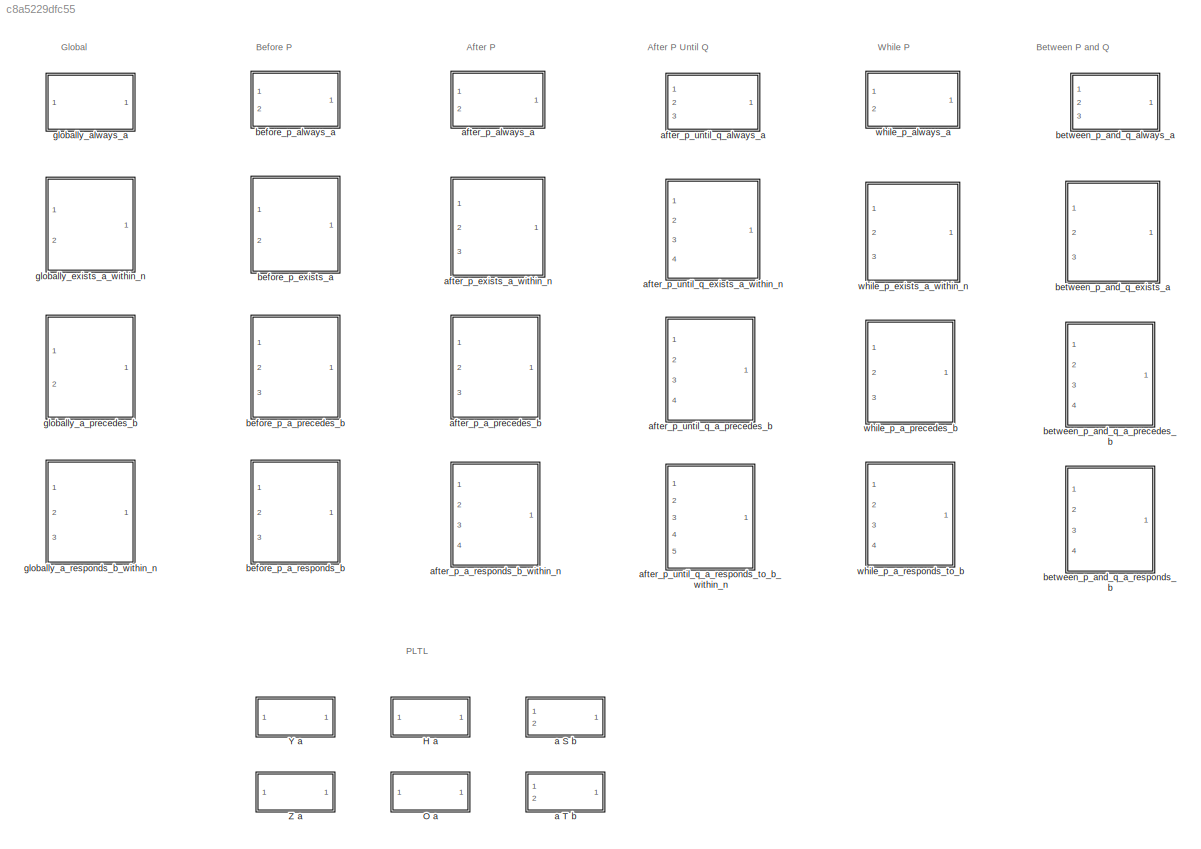
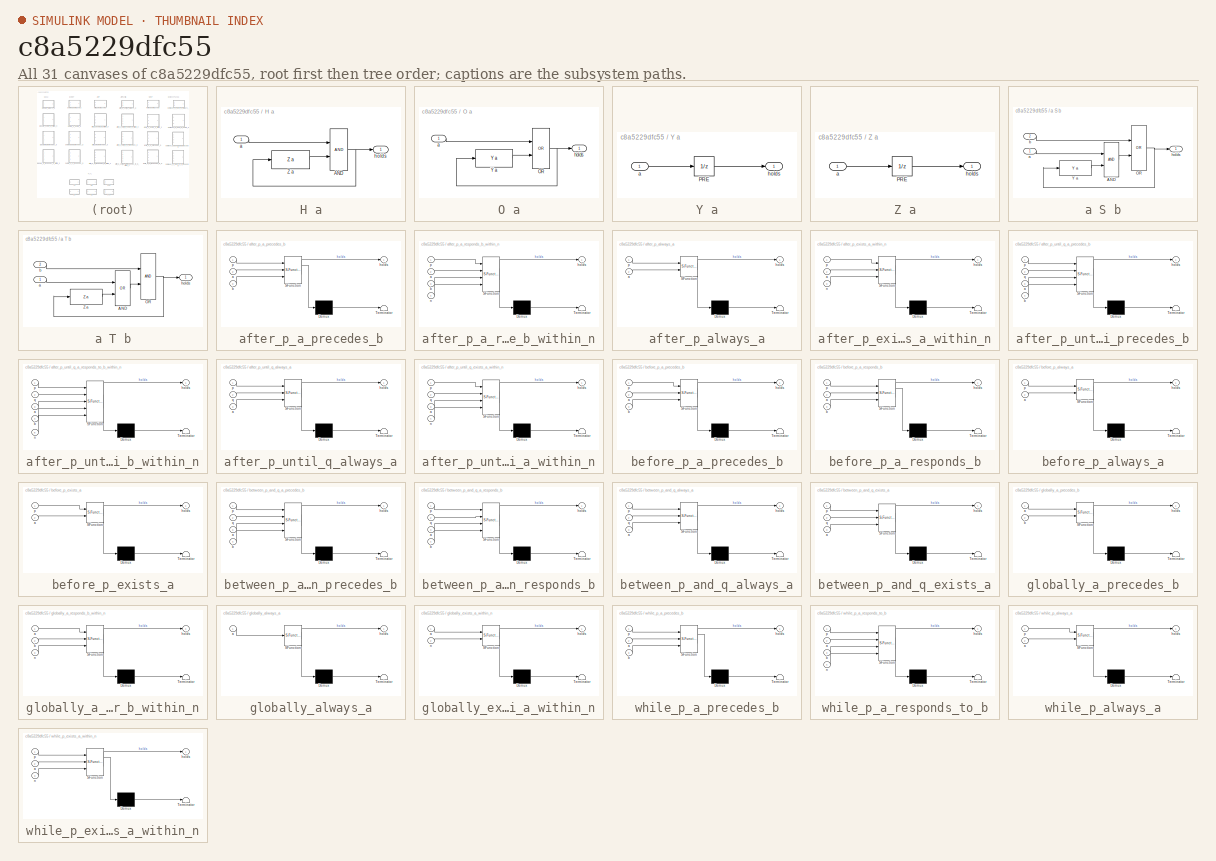
[diagram: thumbnail index - all 31 canvases of the model, root first then tree order]
MODEL slx_c8a5229dfc55
KIND library
BLOCK [SubSystem] H a
  Ports = [1, 1]
  RequestExecContextInheritance = off
BLOCK [Logic] H a/AND
  AllPortsSameDT = off
  OutDataTypeStr = boolean
  Ports = [2, 1]
BLOCK [Reference] H a/Z a  REF=patterns_library/Z a  (lib defined in slx_1b5033acf6a4)
  Ports = [1, 1]
  SourceBlock = patterns_library/Z a
  SourceType = SubSystem
BLOCK [Inport] H a/a
  IconDisplay = Port number
BLOCK [Outport] H a/holds
  IconDisplay = Port number
BLOCK [SubSystem] O a
  Ports = [1, 1]
  RequestExecContextInheritance = off
BLOCK [Logic] O a/OR
  AllPortsSameDT = off
  Operator = OR
  OutDataTypeStr = boolean
  Ports = [2, 1]
BLOCK [Reference] O a/Y a  REF=patterns_library/Y a  (lib defined in slx_1b5033acf6a4)
  Ports = [1, 1]
  SourceBlock = patterns_library/Y a
  SourceType = SubSystem
BLOCK [Inport] O a/a
  IconDisplay = Port number
BLOCK [Outport] O a/holds
  IconDisplay = Port number
BLOCK [SubSystem] Y a
  Ports = [1, 1]
  RequestExecContextInheritance = off
BLOCK [UnitDelay] Y a/PRE
  AttributesFormatString = default=%<InitialCondition>
  InitialCondition = false
  InputProcessing = Elements as channels (sample based)
  SampleTime = -1
BLOCK [Inport] Y a/a
  IconDisplay = Port number
BLOCK [Outport] Y a/holds
  IconDisplay = Port number
BLOCK [SubSystem] Z a
  Ports = [1, 1]
  RequestExecContextInheritance = off
BLOCK [UnitDelay] Z a/PRE
  AttributesFormatString = default=%<InitialCondition>
  InitialCondition = true
  InputProcessing = Elements as channels (sample based)
  SampleTime = -1
BLOCK [Inport] Z a/a
  IconDisplay = Port number
BLOCK [Outport] Z a/holds
  IconDisplay = Port number
BLOCK [SubSystem] a S b
  Ports = [2, 1]
  RequestExecContextInheritance = off
BLOCK [Logic] a S b/AND
  AllPortsSameDT = off
  OutDataTypeStr = boolean
  Ports = [2, 1]
BLOCK [Logic] a S b/OR
  AllPortsSameDT = off
  Operator = OR
  OutDataTypeStr = boolean
  Ports = [2, 1]
BLOCK [Reference] a S b/Y a  REF=patterns_library/Y a  (lib defined in slx_1b5033acf6a4)
  Ports = [1, 1]
  SourceBlock = patterns_library/Y a
  SourceType = SubSystem
BLOCK [Inport] a S b/a
  IconDisplay = Port number
BLOCK [Inport] a S b/b
  IconDisplay = Port number
  Port = 2
BLOCK [Outport] a S b/holds
  IconDisplay = Port number
BLOCK [SubSystem] a T b
  Ports = [2, 1]
  RequestExecContextInheritance = off
BLOCK [Logic] a T b/AND
  AllPortsSameDT = off
  Operator = OR
  OutDataTypeStr = boolean
  Ports = [2, 1]
BLOCK [Logic] a T b/OR
  AllPortsSameDT = off
  OutDataTypeStr = boolean
  Ports = [2, 1]
BLOCK [Reference] a T b/Z a  REF=patterns_library/Z a  (lib defined in slx_1b5033acf6a4)
  Ports = [1, 1]
  SourceBlock = patterns_library/Z a
  SourceType = SubSystem
BLOCK [Inport] a T b/a
  IconDisplay = Port number
BLOCK [Inport] a T b/b
  IconDisplay = Port number
  Port = 2
BLOCK [Outport] a T b/holds
  IconDisplay = Port number
BLOCK [SubSystem] after_p_a_precedes_b
  ErrorFcn = Stateflow.Translate.translate
  PermitHierarchicalResolution = ParametersOnly
  Ports = [3, 1]
  RequestExecContextInheritance = off
  SFBlockType = Chart
  TreatAsAtomicUnit = on
BLOCK [Demux] after_p_a_precedes_b/ Demux 
  Outputs = 1
  Ports = [1, 1]
BLOCK [S-Function] after_p_a_precedes_b/ SFunction 
  EnableBusSupport = off
  FunctionName = sf_sfun
  PortCounts = [3 2]
  Ports = [3, 2]
  Tag = Stateflow S-Function patterns_library_2013b 6
BLOCK [Terminator] after_p_a_precedes_b/ Terminator 
BLOCK [Inport] after_p_a_precedes_b/a
  IconDisplay = Port number
  Port = 2
BLOCK [Inport] after_p_a_precedes_b/b
  IconDisplay = Port number
  Port = 3
BLOCK [Outport] after_p_a_precedes_b/holds
  IconDisplay = Port number
BLOCK [Inport] after_p_a_precedes_b/p
  IconDisplay = Port number
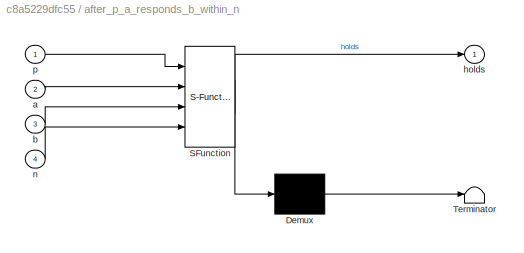
BLOCK [SubSystem] after_p_a_responds_b_within_n
  ErrorFcn = Stateflow.Translate.translate
  PermitHierarchicalResolution = ParametersOnly
  Ports = [4, 1]
  RequestExecContextInheritance = off
  SFBlockType = Chart
  TreatAsAtomicUnit = on
BLOCK [Demux] after_p_a_responds_b_within_n/ Demux 
  Outputs = 1
  Ports = [1, 1]
BLOCK [S-Function] after_p_a_responds_b_within_n/ SFunction 
  EnableBusSupport = off
  FunctionName = sf_sfun
  PortCounts = [4 2]
  Ports = [4, 2]
  Tag = Stateflow S-Function patterns_library_2013b 8
BLOCK [Terminator] after_p_a_responds_b_within_n/ Terminator 
BLOCK [Inport] after_p_a_responds_b_within_n/a
  IconDisplay = Port number
  Port = 2
BLOCK [Inport] after_p_a_responds_b_within_n/b
  IconDisplay = Port number
  Port = 3
BLOCK [Outport] after_p_a_responds_b_within_n/holds
  IconDisplay = Port number
BLOCK [Inport] after_p_a_responds_b_within_n/n
  IconDisplay = Port number
  Port = 4
BLOCK [Inport] after_p_a_responds_b_within_n/p
  IconDisplay = Port number
BLOCK [SubSystem] after_p_always_a
  ErrorFcn = Stateflow.Translate.translate
  PermitHierarchicalResolution = ParametersOnly
  Ports = [2, 1]
  RequestExecContextInheritance = off
  SFBlockType = Chart
  TreatAsAtomicUnit = on
BLOCK [Demux] after_p_always_a/ Demux 
  Outputs = 1
  Ports = [1, 1]
BLOCK [S-Function] after_p_always_a/ SFunction 
  EnableBusSupport = on
  FunctionName = sf_sfun
  PortCounts = [2 2]
  Ports = [2, 2]
  Tag = Stateflow S-Function patterns_library_2013b 7
BLOCK [Terminator] after_p_always_a/ Terminator 
BLOCK [Inport] after_p_always_a/a
  IconDisplay = Port number
  Port = 2
BLOCK [Outport] after_p_always_a/holds
  IconDisplay = Port number
BLOCK [Inport] after_p_always_a/p
  IconDisplay = Port number
BLOCK [SubSystem] after_p_exists_a_within_n
  ErrorFcn = Stateflow.Translate.translate
  PermitHierarchicalResolution = ParametersOnly
  Ports = [3, 1]
  RequestExecContextInheritance = off
  SFBlockType = Chart
  TreatAsAtomicUnit = on
BLOCK [Demux] after_p_exists_a_within_n/ Demux 
  Outputs = 1
  Ports = [1, 1]
BLOCK [S-Function] after_p_exists_a_within_n/ SFunction 
  EnableBusSupport = off
  FunctionName = sf_sfun
  PortCounts = [3 2]
  Ports = [3, 2]
  Tag = Stateflow S-Function patterns_library_2013b 5
BLOCK [Terminator] after_p_exists_a_within_n/ Terminator 
BLOCK [Inport] after_p_exists_a_within_n/a
  IconDisplay = Port number
  Port = 2
BLOCK [Outport] after_p_exists_a_within_n/holds
  IconDisplay = Port number
BLOCK [Inport] after_p_exists_a_within_n/n
  IconDisplay = Port number
  Port = 3
BLOCK [Inport] after_p_exists_a_within_n/p
  IconDisplay = Port number
BLOCK [SubSystem] after_p_until_q_a_precedes_b
  ErrorFcn = Stateflow.Translate.translate
  PermitHierarchicalResolution = ParametersOnly
  Ports = [4, 1]
  RequestExecContextInheritance = off
  SFBlockType = Chart
  TreatAsAtomicUnit = on
BLOCK [Demux] after_p_until_q_a_precedes_b/ Demux 
  Outputs = 1
  Ports = [1, 1]
BLOCK [S-Function] after_p_until_q_a_precedes_b/ SFunction 
  EnableBusSupport = off
  FunctionName = sf_sfun
  PortCounts = [4 2]
  Ports = [4, 2]
  Tag = Stateflow S-Function patterns_library_2013b 15
BLOCK [Terminator] after_p_until_q_a_precedes_b/ Terminator 
BLOCK [Inport] after_p_until_q_a_precedes_b/a
  IconDisplay = Port number
  Port = 3
BLOCK [Inport] after_p_until_q_a_precedes_b/b
  IconDisplay = Port number
  Port = 4
BLOCK [Outport] after_p_until_q_a_precedes_b/holds
  IconDisplay = Port number
BLOCK [Inport] after_p_until_q_a_precedes_b/p
  IconDisplay = Port number
BLOCK [Inport] after_p_until_q_a_precedes_b/q
  IconDisplay = Port number
  Port = 2
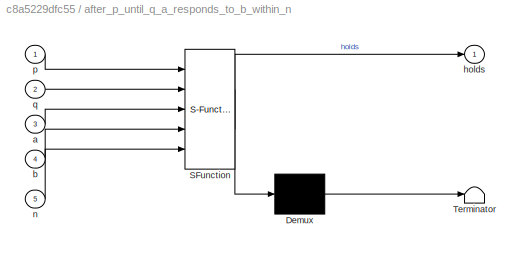
BLOCK [SubSystem] after_p_until_q_a_responds_to_b_within_n
  ErrorFcn = Stateflow.Translate.translate
  PermitHierarchicalResolution = ParametersOnly
  Ports = [5, 1]
  RequestExecContextInheritance = off
  SFBlockType = Chart
  TreatAsAtomicUnit = on
BLOCK [Demux] after_p_until_q_a_responds_to_b_within_n/ Demux 
  Outputs = 1
  Ports = [1, 1]
BLOCK [S-Function] after_p_until_q_a_responds_to_b_within_n/ SFunction 
  EnableBusSupport = off
  FunctionName = sf_sfun
  PortCounts = [5 2]
  Ports = [5, 2]
  Tag = Stateflow S-Function patterns_library_2013b 16
BLOCK [Terminator] after_p_until_q_a_responds_to_b_within_n/ Terminator 
BLOCK [Inport] after_p_until_q_a_responds_to_b_within_n/a
  IconDisplay = Port number
  Port = 3
BLOCK [Inport] after_p_until_q_a_responds_to_b_within_n/b
  IconDisplay = Port number
  Port = 4
BLOCK [Outport] after_p_until_q_a_responds_to_b_within_n/holds
  IconDisplay = Port number
BLOCK [Inport] after_p_until_q_a_responds_to_b_within_n/n
  IconDisplay = Port number
  Port = 5
BLOCK [Inport] after_p_until_q_a_responds_to_b_within_n/p
  IconDisplay = Port number
BLOCK [Inport] after_p_until_q_a_responds_to_b_within_n/q
  IconDisplay = Port number
  Port = 2
BLOCK [SubSystem] after_p_until_q_always_a
  ErrorFcn = Stateflow.Translate.translate
  PermitHierarchicalResolution = ParametersOnly
  Ports = [3, 1]
  RequestExecContextInheritance = off
  SFBlockType = Chart
  TreatAsAtomicUnit = on
BLOCK [Demux] after_p_until_q_always_a/ Demux 
  Outputs = 1
  Ports = [1, 1]
BLOCK [S-Function] after_p_until_q_always_a/ SFunction 
  EnableBusSupport = off
  FunctionName = sf_sfun
  PortCounts = [3 2]
  Ports = [3, 2]
  Tag = Stateflow S-Function patterns_library_2013b 13
BLOCK [Terminator] after_p_until_q_always_a/ Terminator 
BLOCK [Inport] after_p_until_q_always_a/a
  IconDisplay = Port number
  Port = 3
BLOCK [Outport] after_p_until_q_always_a/holds
  IconDisplay = Port number
BLOCK [Inport] after_p_until_q_always_a/p
  IconDisplay = Port number
BLOCK [Inport] after_p_until_q_always_a/q
  IconDisplay = Port number
  Port = 2
BLOCK [SubSystem] after_p_until_q_exists_a_within_n
  ErrorFcn = Stateflow.Translate.translate
  PermitHierarchicalResolution = ParametersOnly
  Ports = [4, 1]
  RequestExecContextInheritance = off
  SFBlockType = Chart
  TreatAsAtomicUnit = on
BLOCK [Demux] after_p_until_q_exists_a_within_n/ Demux 
  Outputs = 1
  Ports = [1, 1]
BLOCK [S-Function] after_p_until_q_exists_a_within_n/ SFunction 
  EnableBusSupport = off
  FunctionName = sf_sfun
  PortCounts = [4 2]
  Ports = [4, 2]
  Tag = Stateflow S-Function patterns_library_2013b 14
BLOCK [Terminator] after_p_until_q_exists_a_within_n/ Terminator 
BLOCK [Inport] after_p_until_q_exists_a_within_n/a
  IconDisplay = Port number
  Port = 3
BLOCK [Outport] after_p_until_q_exists_a_within_n/holds
  IconDisplay = Port number
BLOCK [Inport] after_p_until_q_exists_a_within_n/n
  IconDisplay = Port number
  Port = 4
BLOCK [Inport] after_p_until_q_exists_a_within_n/p
  IconDisplay = Port number
BLOCK [Inport] after_p_until_q_exists_a_within_n/q
  IconDisplay = Port number
  Port = 2
BLOCK [SubSystem] before_p_a_precedes_b
  ErrorFcn = Stateflow.Translate.translate
  PermitHierarchicalResolution = ParametersOnly
  Ports = [3, 1]
  RequestExecContextInheritance = off
  SFBlockType = Chart
  TreatAsAtomicUnit = on
BLOCK [Demux] before_p_a_precedes_b/ Demux 
  Outputs = 1
  Ports = [1, 1]
BLOCK [S-Function] before_p_a_precedes_b/ SFunction 
  EnableBusSupport = off
  FunctionName = sf_sfun
  PortCounts = [3 2]
  Ports = [3, 2]
  Tag = Stateflow S-Function patterns_library_2013b 3
BLOCK [Terminator] before_p_a_precedes_b/ Terminator 
BLOCK [Inport] before_p_a_precedes_b/a
  IconDisplay = Port number
  Port = 2
BLOCK [Inport] before_p_a_precedes_b/b
  IconDisplay = Port number
  Port = 3
BLOCK [Outport] before_p_a_precedes_b/holds
  IconDisplay = Port number
BLOCK [Inport] before_p_a_precedes_b/p
  IconDisplay = Port number
BLOCK [SubSystem] before_p_a_responds_b
  ErrorFcn = Stateflow.Translate.translate
  PermitHierarchicalResolution = ParametersOnly
  Ports = [3, 1]
  RequestExecContextInheritance = off
  SFBlockType = Chart
  TreatAsAtomicUnit = on
BLOCK [Demux] before_p_a_responds_b/ Demux 
  Outputs = 1
  Ports = [1, 1]
BLOCK [S-Function] before_p_a_responds_b/ SFunction 
  EnableBusSupport = off
  FunctionName = sf_sfun
  PortCounts = [3 2]
  Ports = [3, 2]
  Tag = Stateflow S-Function patterns_library_2013b 4
BLOCK [Terminator] before_p_a_responds_b/ Terminator 
BLOCK [Inport] before_p_a_responds_b/a
  IconDisplay = Port number
  Port = 2
BLOCK [Inport] before_p_a_responds_b/b
  IconDisplay = Port number
  Port = 3
BLOCK [Outport] before_p_a_responds_b/holds
  IconDisplay = Port number
BLOCK [Inport] before_p_a_responds_b/p
  IconDisplay = Port number
BLOCK [SubSystem] before_p_always_a
  ErrorFcn = Stateflow.Translate.translate
  PermitHierarchicalResolution = ParametersOnly
  Ports = [2, 1]
  RequestExecContextInheritance = off
  SFBlockType = Chart
  TreatAsAtomicUnit = on
BLOCK [Demux] before_p_always_a/ Demux 
  Outputs = 1
  Ports = [1, 1]
BLOCK [S-Function] before_p_always_a/ SFunction 
  EnableBusSupport = on
  FunctionName = sf_sfun
  PortCounts = [2 2]
  Ports = [2, 2]
  Tag = Stateflow S-Function patterns_library_2013b 1
BLOCK [Terminator] before_p_always_a/ Terminator 
BLOCK [Inport] before_p_always_a/a
  IconDisplay = Port number
  Port = 2
BLOCK [Outport] before_p_always_a/holds
  IconDisplay = Port number
BLOCK [Inport] before_p_always_a/p
  IconDisplay = Port number
BLOCK [SubSystem] before_p_exists_a
  ErrorFcn = Stateflow.Translate.translate
  PermitHierarchicalResolution = ParametersOnly
  Ports = [2, 1]
  RequestExecContextInheritance = off
  SFBlockType = Chart
  TreatAsAtomicUnit = on
BLOCK [Demux] before_p_exists_a/ Demux 
  Outputs = 1
  Ports = [1, 1]
BLOCK [S-Function] before_p_exists_a/ SFunction 
  EnableBusSupport = off
  FunctionName = sf_sfun
  PortCounts = [2 2]
  Ports = [2, 2]
  Tag = Stateflow S-Function patterns_library_2013b 2
BLOCK [Terminator] before_p_exists_a/ Terminator 
BLOCK [Inport] before_p_exists_a/a
  IconDisplay = Port number
  Port = 2
BLOCK [Outport] before_p_exists_a/holds
  IconDisplay = Port number
BLOCK [Inport] before_p_exists_a/p
  IconDisplay = Port number
BLOCK [SubSystem] between_p_and_q_a_precedes_b
  ErrorFcn = Stateflow.Translate.translate
  PermitHierarchicalResolution = ParametersOnly
  Ports = [4, 1]
  RequestExecContextInheritance = off
  SFBlockType = Chart
  TreatAsAtomicUnit = on
BLOCK [Demux] between_p_and_q_a_precedes_b/ Demux 
  Outputs = 1
  Ports = [1, 1]
BLOCK [S-Function] between_p_and_q_a_precedes_b/ SFunction 
  EnableBusSupport = off
  FunctionName = sf_sfun
  PortCounts = [4 2]
  Ports = [4, 2]
  Tag = Stateflow S-Function patterns_library_2013b 23
BLOCK [Terminator] between_p_and_q_a_precedes_b/ Terminator 
BLOCK [Inport] between_p_and_q_a_precedes_b/a
  IconDisplay = Port number
  Port = 3
BLOCK [Inport] between_p_and_q_a_precedes_b/b
  IconDisplay = Port number
  Port = 4
BLOCK [Outport] between_p_and_q_a_precedes_b/holds
  IconDisplay = Port number
BLOCK [Inport] between_p_and_q_a_precedes_b/p
  IconDisplay = Port number
BLOCK [Inport] between_p_and_q_a_precedes_b/q
  IconDisplay = Port number
  Port = 2
BLOCK [SubSystem] between_p_and_q_a_responds_b
  ErrorFcn = Stateflow.Translate.translate
  PermitHierarchicalResolution = ParametersOnly
  Ports = [4, 1]
  RequestExecContextInheritance = off
  SFBlockType = Chart
  TreatAsAtomicUnit = on
BLOCK [Demux] between_p_and_q_a_responds_b/ Demux 
  Outputs = 1
  Ports = [1, 1]
BLOCK [S-Function] between_p_and_q_a_responds_b/ SFunction 
  EnableBusSupport = off
  FunctionName = sf_sfun
  PortCounts = [4 2]
  Ports = [4, 2]
  Tag = Stateflow S-Function patterns_library_2013b 24
BLOCK [Terminator] between_p_and_q_a_responds_b/ Terminator 
BLOCK [Inport] between_p_and_q_a_responds_b/a
  IconDisplay = Port number
  Port = 3
BLOCK [Inport] between_p_and_q_a_responds_b/b
  IconDisplay = Port number
  Port = 4
BLOCK [Outport] between_p_and_q_a_responds_b/holds
  IconDisplay = Port number
BLOCK [Inport] between_p_and_q_a_responds_b/p
  IconDisplay = Port number
BLOCK [Inport] between_p_and_q_a_responds_b/q
  IconDisplay = Port number
  Port = 2
BLOCK [SubSystem] between_p_and_q_always_a
  ErrorFcn = Stateflow.Translate.translate
  PermitHierarchicalResolution = ParametersOnly
  Ports = [3, 1]
  RequestExecContextInheritance = off
  SFBlockType = Chart
  TreatAsAtomicUnit = on
BLOCK [Demux] between_p_and_q_always_a/ Demux 
  Outputs = 1
  Ports = [1, 1]
BLOCK [S-Function] between_p_and_q_always_a/ SFunction 
  EnableBusSupport = off
  FunctionName = sf_sfun
  PortCounts = [3 2]
  Ports = [3, 2]
  Tag = Stateflow S-Function patterns_library_2013b 21
BLOCK [Terminator] between_p_and_q_always_a/ Terminator 
BLOCK [Inport] between_p_and_q_always_a/a
  IconDisplay = Port number
  Port = 3
BLOCK [Outport] between_p_and_q_always_a/holds
  IconDisplay = Port number
BLOCK [Inport] between_p_and_q_always_a/p
  IconDisplay = Port number
BLOCK [Inport] between_p_and_q_always_a/q
  IconDisplay = Port number
  Port = 2
BLOCK [SubSystem] between_p_and_q_exists_a
  ErrorFcn = Stateflow.Translate.translate
  PermitHierarchicalResolution = ParametersOnly
  Ports = [3, 1]
  RequestExecContextInheritance = off
  SFBlockType = Chart
  TreatAsAtomicUnit = on
BLOCK [Demux] between_p_and_q_exists_a/ Demux 
  Outputs = 1
  Ports = [1, 1]
BLOCK [S-Function] between_p_and_q_exists_a/ SFunction 
  EnableBusSupport = off
  FunctionName = sf_sfun
  PortCounts = [3 2]
  Ports = [3, 2]
  Tag = Stateflow S-Function patterns_library_2013b 22
BLOCK [Terminator] between_p_and_q_exists_a/ Terminator 
BLOCK [Inport] between_p_and_q_exists_a/a
  IconDisplay = Port number
  Port = 3
BLOCK [Outport] between_p_and_q_exists_a/holds
  IconDisplay = Port number
BLOCK [Inport] between_p_and_q_exists_a/p
  IconDisplay = Port number
BLOCK [Inport] between_p_and_q_exists_a/q
  IconDisplay = Port number
  Port = 2
BLOCK [SubSystem] globally_a_precedes_b
  ErrorFcn = Stateflow.Translate.translate
  PermitHierarchicalResolution = ParametersOnly
  Ports = [2, 1]
  RequestExecContextInheritance = off
  SFBlockType = Chart
  TreatAsAtomicUnit = on
BLOCK [Demux] globally_a_precedes_b/ Demux 
  Outputs = 1
  Ports = [1, 1]
BLOCK [S-Function] globally_a_precedes_b/ SFunction 
  EnableBusSupport = off
  FunctionName = sf_sfun
  PortCounts = [2 2]
  Ports = [2, 2]
  Tag = Stateflow S-Function patterns_library_2013b 11
BLOCK [Terminator] globally_a_precedes_b/ Terminator 
BLOCK [Inport] globally_a_precedes_b/a
  IconDisplay = Port number
BLOCK [Inport] globally_a_precedes_b/b
  IconDisplay = Port number
  Port = 2
BLOCK [Outport] globally_a_precedes_b/holds
  IconDisplay = Port number
BLOCK [SubSystem] globally_a_responds_b_within_n
  ErrorFcn = Stateflow.Translate.translate
  PermitHierarchicalResolution = ParametersOnly
  Ports = [3, 1]
  RequestExecContextInheritance = off
  SFBlockType = Chart
  TreatAsAtomicUnit = on
BLOCK [Demux] globally_a_responds_b_within_n/ Demux 
  Outputs = 1
  Ports = [1, 1]
BLOCK [S-Function] globally_a_responds_b_within_n/ SFunction 
  EnableBusSupport = off
  FunctionName = sf_sfun
  PortCounts = [3 2]
  Ports = [3, 2]
  Tag = Stateflow S-Function patterns_library_2013b 12
BLOCK [Terminator] globally_a_responds_b_within_n/ Terminator 
BLOCK [Inport] globally_a_responds_b_within_n/a
  IconDisplay = Port number
BLOCK [Inport] globally_a_responds_b_within_n/b
  IconDisplay = Port number
  Port = 2
BLOCK [Outport] globally_a_responds_b_within_n/holds
  IconDisplay = Port number
BLOCK [Inport] globally_a_responds_b_within_n/n
  IconDisplay = Port number
  Port = 3
BLOCK [SubSystem] globally_always_a
  ErrorFcn = Stateflow.Translate.translate
  PermitHierarchicalResolution = ParametersOnly
  Ports = [1, 1]
  RequestExecContextInheritance = off
  SFBlockType = Chart
  TreatAsAtomicUnit = on
BLOCK [Demux] globally_always_a/ Demux 
  Outputs = 1
  Ports = [1, 1]
BLOCK [S-Function] globally_always_a/ SFunction 
  EnableBusSupport = off
  FunctionName = sf_sfun
  PortCounts = [1 2]
  Ports = [1, 2]
  Tag = Stateflow S-Function patterns_library_2013b 9
BLOCK [Terminator] globally_always_a/ Terminator 
BLOCK [Inport] globally_always_a/a
  IconDisplay = Port number
BLOCK [Outport] globally_always_a/holds
  IconDisplay = Port number
BLOCK [SubSystem] globally_exists_a_within_n
  ErrorFcn = Stateflow.Translate.translate
  PermitHierarchicalResolution = ParametersOnly
  Ports = [2, 1]
  RequestExecContextInheritance = off
  SFBlockType = Chart
  TreatAsAtomicUnit = on
BLOCK [Demux] globally_exists_a_within_n/ Demux 
  Outputs = 1
  Ports = [1, 1]
BLOCK [S-Function] globally_exists_a_within_n/ SFunction 
  EnableBusSupport = off
  FunctionName = sf_sfun
  PortCounts = [2 2]
  Ports = [2, 2]
  Tag = Stateflow S-Function patterns_library_2013b 10
BLOCK [Terminator] globally_exists_a_within_n/ Terminator 
BLOCK [Inport] globally_exists_a_within_n/a
  IconDisplay = Port number
BLOCK [Outport] globally_exists_a_within_n/holds
  IconDisplay = Port number
BLOCK [Inport] globally_exists_a_within_n/n
  IconDisplay = Port number
  Port = 2
BLOCK [SubSystem] while_p_a_precedes_b
  ErrorFcn = Stateflow.Translate.translate
  PermitHierarchicalResolution = ParametersOnly
  Ports = [3, 1]
  RequestExecContextInheritance = off
  SFBlockType = Chart
  TreatAsAtomicUnit = on
BLOCK [Demux] while_p_a_precedes_b/ Demux 
  Outputs = 1
  Ports = [1, 1]
BLOCK [S-Function] while_p_a_precedes_b/ SFunction 
  EnableBusSupport = off
  FunctionName = sf_sfun
  PortCounts = [3 2]
  Ports = [3, 2]
  Tag = Stateflow S-Function patterns_library_2013b 19
BLOCK [Terminator] while_p_a_precedes_b/ Terminator 
BLOCK [Inport] while_p_a_precedes_b/a
  IconDisplay = Port number
  Port = 2
BLOCK [Inport] while_p_a_precedes_b/b
  IconDisplay = Port number
  Port = 3
BLOCK [Outport] while_p_a_precedes_b/holds
  IconDisplay = Port number
BLOCK [Inport] while_p_a_precedes_b/p
  IconDisplay = Port number
BLOCK [SubSystem] while_p_a_responds_to_b
  ErrorFcn = Stateflow.Translate.translate
  PermitHierarchicalResolution = ParametersOnly
  Ports = [4, 1]
  RequestExecContextInheritance = off
  SFBlockType = Chart
  TreatAsAtomicUnit = on
BLOCK [Demux] while_p_a_responds_to_b/ Demux 
  Outputs = 1
  Ports = [1, 1]
BLOCK [S-Function] while_p_a_responds_to_b/ SFunction 
  EnableBusSupport = off
  FunctionName = sf_sfun
  PortCounts = [4 2]
  Ports = [4, 2]
  Tag = Stateflow S-Function patterns_library_2013b 20
BLOCK [Terminator] while_p_a_responds_to_b/ Terminator 
BLOCK [Inport] while_p_a_responds_to_b/a
  IconDisplay = Port number
  Port = 2
BLOCK [Inport] while_p_a_responds_to_b/b
  IconDisplay = Port number
  Port = 3
BLOCK [Outport] while_p_a_responds_to_b/holds
  IconDisplay = Port number
BLOCK [Inport] while_p_a_responds_to_b/n
  IconDisplay = Port number
  Port = 4
BLOCK [Inport] while_p_a_responds_to_b/p
  IconDisplay = Port number
BLOCK [SubSystem] while_p_always_a
  ErrorFcn = Stateflow.Translate.translate
  PermitHierarchicalResolution = ParametersOnly
  Ports = [2, 1]
  RequestExecContextInheritance = off
  SFBlockType = Chart
  TreatAsAtomicUnit = on
BLOCK [Demux] while_p_always_a/ Demux 
  Outputs = 1
  Ports = [1, 1]
BLOCK [S-Function] while_p_always_a/ SFunction 
  EnableBusSupport = off
  FunctionName = sf_sfun
  PortCounts = [2 2]
  Ports = [2, 2]
  Tag = Stateflow S-Function patterns_library_2013b 17
BLOCK [Terminator] while_p_always_a/ Terminator 
BLOCK [Inport] while_p_always_a/a
  IconDisplay = Port number
  Port = 2
BLOCK [Outport] while_p_always_a/holds
  IconDisplay = Port number
BLOCK [Inport] while_p_always_a/p
  IconDisplay = Port number
BLOCK [SubSystem] while_p_exists_a_within_n
  ErrorFcn = Stateflow.Translate.translate
  PermitHierarchicalResolution = ParametersOnly
  Ports = [3, 1]
  RequestExecContextInheritance = off
  SFBlockType = Chart
  TreatAsAtomicUnit = on
BLOCK [Demux] while_p_exists_a_within_n/ Demux 
  Outputs = 1
  Ports = [1, 1]
BLOCK [S-Function] while_p_exists_a_within_n/ SFunction 
  EnableBusSupport = off
  FunctionName = sf_sfun
  PortCounts = [3 2]
  Ports = [3, 2]
  Tag = Stateflow S-Function patterns_library_2013b 18
BLOCK [Terminator] while_p_exists_a_within_n/ Terminator 
BLOCK [Inport] while_p_exists_a_within_n/a
  IconDisplay = Port number
  Port = 2
BLOCK [Outport] while_p_exists_a_within_n/holds
  IconDisplay = Port number
BLOCK [Inport] while_p_exists_a_within_n/n
  IconDisplay = Port number
  Port = 3
BLOCK [Inport] while_p_exists_a_within_n/p
  IconDisplay = Port number
ANNOTATION (root): After P
ANNOTATION (root): After P Until Q
ANNOTATION (root): Before P
ANNOTATION (root): Between P and Q
ANNOTATION (root): Global
ANNOTATION (root): PLTL
ANNOTATION (root): While P
NET H a/AND:1 -> H a/Z a:1, H a/holds:1
LINE H a/Z a:1 -> H a/AND:2
LINE H a/a:1 -> H a/AND:1
NET O a/OR:1 -> O a/Y a:1, O a/holds:1
LINE O a/Y a:1 -> O a/OR:2
LINE O a/a:1 -> O a/OR:1
LINE Y a/PRE:1 -> Y a/holds:1
LINE Y a/a:1 -> Y a/PRE:1
LINE Z a/PRE:1 -> Z a/holds:1
LINE Z a/a:1 -> Z a/PRE:1
LINE a S b/AND:1 -> a S b/OR:2
NET a S b/OR:1 -> a S b/Y a:1, a S b/holds:1
LINE a S b/Y a:1 -> a S b/AND:2
LINE a S b/a:1 -> a S b/AND:1
LINE a S b/b:1 -> a S b/OR:1
LINE a T b/AND:1 -> a T b/OR:2
NET a T b/OR:1 -> a T b/Z a:1, a T b/holds:1
LINE a T b/Z a:1 -> a T b/AND:2
LINE a T b/a:1 -> a T b/AND:1
LINE a T b/b:1 -> a T b/OR:1
note: NET lines group one-source signal fan-out (src -> all destinations, sorted); 1:1 wires keep LINE
